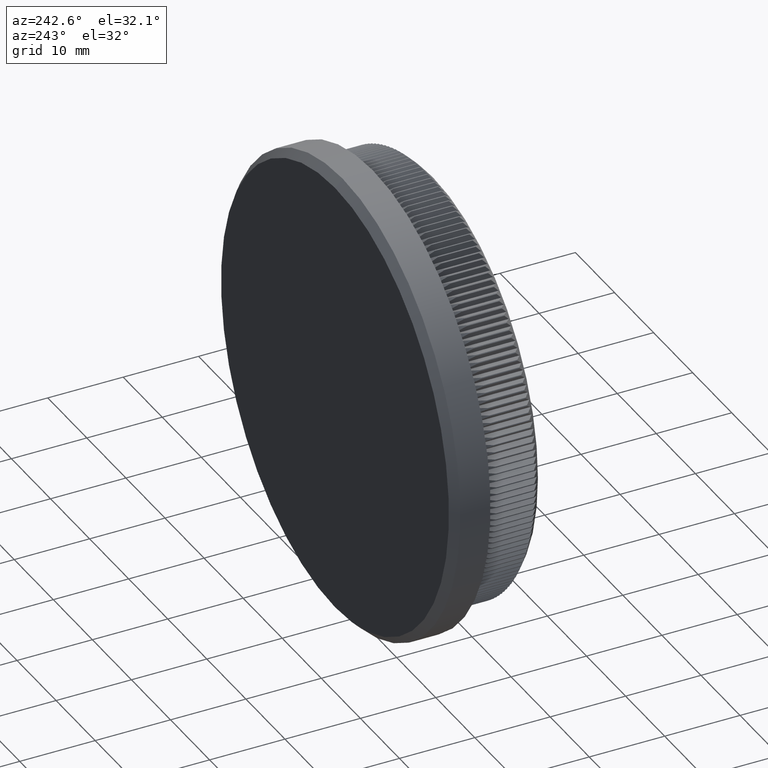
[diagram: clean part render]
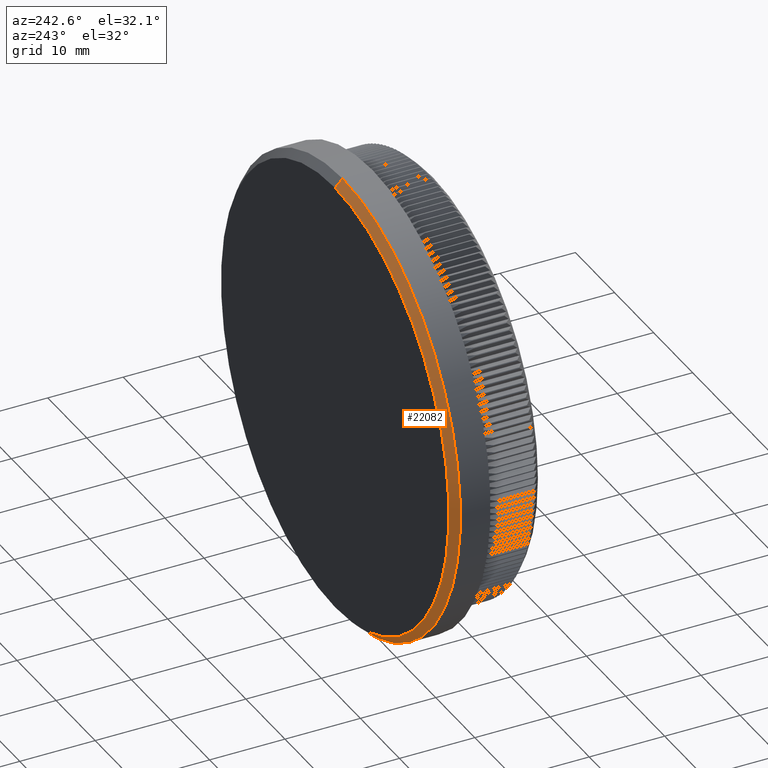
[diagram: same view with one face highlighted and labeled with its STEP entity id]
A machine part, auxiliary view. The second image highlights one B-rep face of the part: STEP entity #22082.
In plain terms, the highlighted conical surface has half-angle 45 deg.
Its self-contained STEP definition (entity closure, byte-faithful):
#275 = VERTEX_POINT ( 'NONE', #27957 ) ;
#940 = CARTESIAN_POINT ( 'NONE',  ( 3.631077759471901200E-015, 13.00000000000000000, 29.14999999999998400 ) ) ;
#3208 = CONICAL_SURFACE ( 'NONE', #32337, 30.14999999999999500, 0.7853981633974482800 ) ;
#3298 = EDGE_CURVE ( 'NONE', #32717, #28405, #16118, .T. ) ;
#3387 = CARTESIAN_POINT ( 'NONE',  ( 0.0000000000000000000, 11.99999999999998800, -30.14999999999999500 ) ) ;
#4578 = FACE_OUTER_BOUND ( 'NONE', #34927, .T. ) ;
#4848 = EDGE_CURVE ( 'NONE', #275, #28405, #11452, .T. ) ;
#5244 = ORIENTED_EDGE ( 'NONE', *, *, #24165, .F. ) ;
#9341 = DIRECTION ( 'NONE',  ( 0.0000000000000000000, 0.0000000000000000000, 1.000000000000000000 ) ) ;
#9465 = CARTESIAN_POINT ( 'NONE',  ( 0.0000000000000000000, 13.00000000000000000, 0.0000000000000000000 ) ) ;
#9989 = DIRECTION ( 'NONE',  ( -0.0000000000000000000, -1.000000000000000000, -0.0000000000000000000 ) ) ;
#11452 = CIRCLE ( 'NONE', #11575, 30.14999999999999500 ) ;
#11575 = AXIS2_PLACEMENT_3D ( 'NONE', #30658, #9989, #13121 ) ;
#12106 = DIRECTION ( 'NONE',  ( 0.0000000000000000000, 1.000000000000000000, 0.0000000000000000000 ) ) ;
#12806 = DIRECTION ( 'NONE',  ( 0.0000000000000000000, -0.7071067811865474600, -0.7071067811865474600 ) ) ;
#13121 = DIRECTION ( 'NONE',  ( 0.0000000000000000000, 0.0000000000000000000, 1.000000000000000000 ) ) ;
#13313 = VECTOR ( 'NONE', #12806, 1000.000000000000100 ) ;
#15789 = ORIENTED_EDGE ( 'NONE', *, *, #3298, .T. ) ;
#16118 = LINE ( 'NONE', #3387, #13313 ) ;
#16643 = CARTESIAN_POINT ( 'NONE',  ( 0.0000000000000000000, 13.00000000000000000, -29.14999999999998400 ) ) ;
#16744 = VECTOR ( 'NONE', #27192, 1000.000000000000100 ) ;
#22082 = ADVANCED_FACE ( 'NONE', ( #4578 ), #3208, .T. ) ;
#23040 = CARTESIAN_POINT ( 'NONE',  ( 0.0000000000000000000, 11.99999999999998800, 0.0000000000000000000 ) ) ;
#23184 = DIRECTION ( 'NONE',  ( -0.0000000000000000000, -1.000000000000000000, -0.0000000000000000000 ) ) ;
#24165 = EDGE_CURVE ( 'NONE', #26535, #275, #24646, .T. ) ;
#24646 = LINE ( 'NONE', #27068, #16744 ) ;
#26535 = VERTEX_POINT ( 'NONE', #940 ) ;
#26571 = ORIENTED_EDGE ( 'NONE', *, *, #4848, .F. ) ;
#27068 = CARTESIAN_POINT ( 'NONE',  ( 3.692310099429269600E-015, 11.99999999999998800, 30.14999999999999500 ) ) ;
#27192 = DIRECTION ( 'NONE',  ( 8.659560562354932900E-017, -0.7071067811865474600, 0.7071067811865474600 ) ) ;
#27957 = CARTESIAN_POINT ( 'NONE',  ( 3.692310099429269600E-015, 11.99999999999998800, 30.14999999999999500 ) ) ;
#28311 = AXIS2_PLACEMENT_3D ( 'NONE', #9465, #12106, #9341 ) ;
#28405 = VERTEX_POINT ( 'NONE', #37110 ) ;
#29119 = DIRECTION ( 'NONE',  ( 0.0000000000000000000, 0.0000000000000000000, -1.000000000000000000 ) ) ;
#30319 = ORIENTED_EDGE ( 'NONE', *, *, #30520, .F. ) ;
#30520 = EDGE_CURVE ( 'NONE', #32717, #26535, #31530, .T. ) ;
#30658 = CARTESIAN_POINT ( 'NONE',  ( 0.0000000000000000000, 11.99999999999998800, 0.0000000000000000000 ) ) ;
#31530 = CIRCLE ( 'NONE', #28311, 29.14999999999998400 ) ;
#32337 = AXIS2_PLACEMENT_3D ( 'NONE', #23040, #23184, #29119 ) ;
#32717 = VERTEX_POINT ( 'NONE', #16643 ) ;
#34927 = EDGE_LOOP ( 'NONE', ( #5244, #30319, #15789, #26571 ) ) ;
#37110 = CARTESIAN_POINT ( 'NONE',  ( 0.0000000000000000000, 11.99999999999998800, -30.14999999999999500 ) ) ;